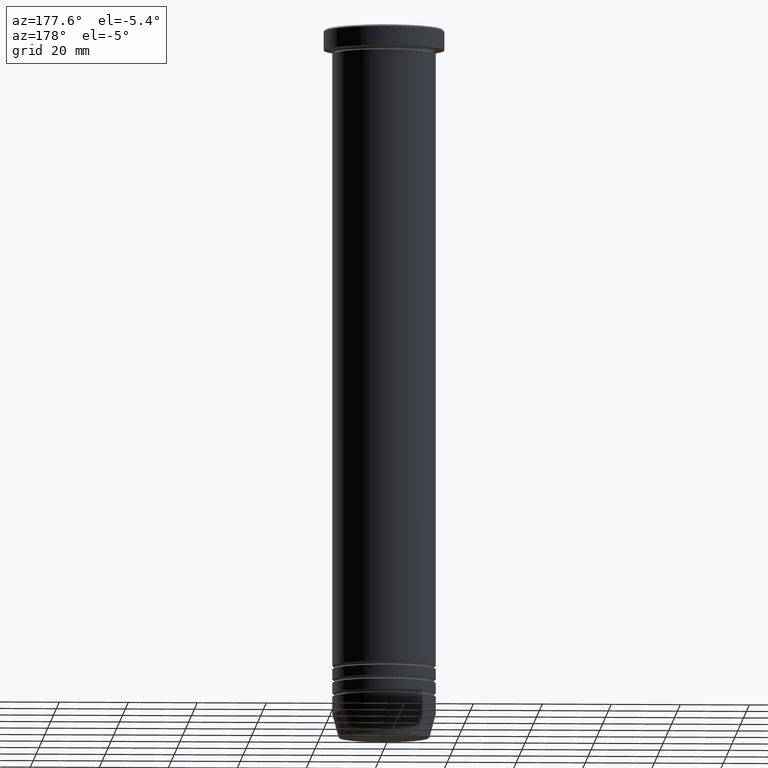
[diagram: clean part render]
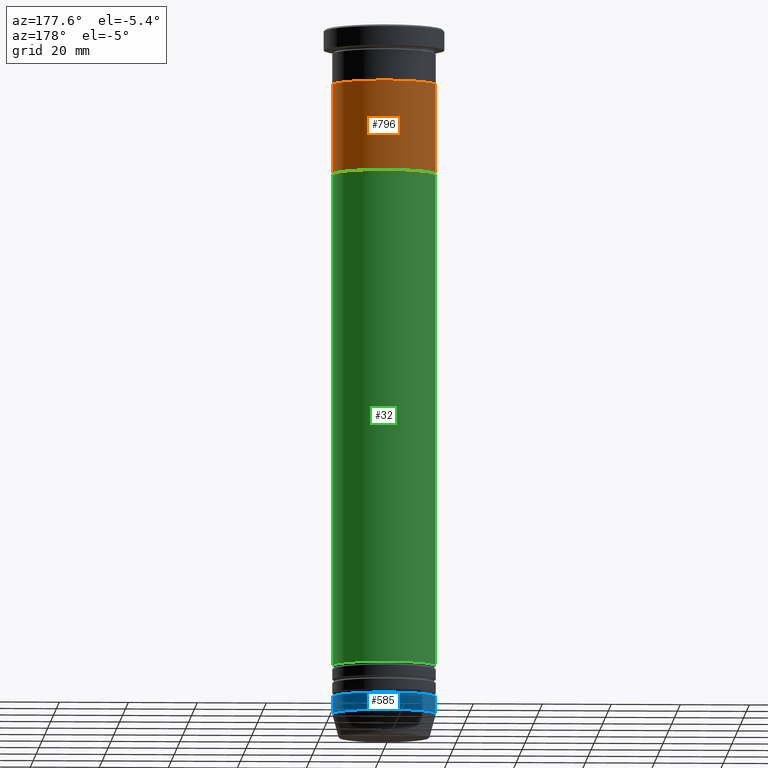
[diagram: same view with three faces highlighted in distinct colors, each labeled with its STEP entity id]
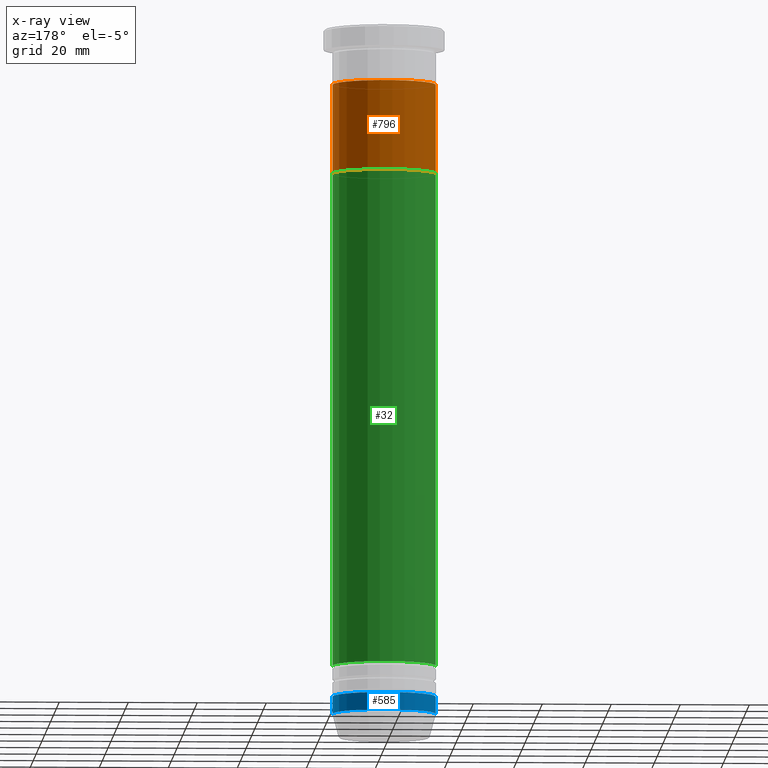
[diagram: x-ray of the same camera — body ghosted, the three highlighted faces saturated]
A machine part, auxiliary view with three faces highlighted in distinct colors.
The next image is the same camera in x-ray (body ghosted, the three faces saturated) — at least one of them is partly hidden behind the body in this view.
Their STEP definitions:

[orange] entity #796 — the highlighted cylindrical surface (partial cylindrical patch) has radius 15 mm, axis along (-0, -0, 1).
#12 = VERTEX_POINT ( 'NONE', #917 ) ;
#34 = DIRECTION ( 'NONE',  ( 0.000000000000000000, 0.000000000000000000, -1.000000000000000000 ) ) ;
#37 = LINE ( 'NONE', #228, #728 ) ;
#40 = DIRECTION ( 'NONE',  ( 0.000000000000000000, 0.000000000000000000, -1.000000000000000000 ) ) ;
#57 = ORIENTED_EDGE ( 'NONE', *, *, #162, .T. ) ;
#76 = FACE_OUTER_BOUND ( 'NONE', #1012, .T. ) ;
#123 = DIRECTION ( 'NONE',  ( -1.000000000000000000, 0.000000000000000000, 0.000000000000000000 ) ) ;
#143 = DIRECTION ( 'NONE',  ( -0.000000000000000000, -0.000000000000000000, 1.000000000000000000 ) ) ;
#162 = EDGE_CURVE ( 'NONE', #925, #685, #251, .T. ) ;
#219 = CARTESIAN_POINT ( 'NONE',  ( 0.000000000000000000, 0.000000000000000000, -41.99999999999999289 ) ) ;
#228 = CARTESIAN_POINT ( 'NONE',  ( 15.00000000000000000, 0.000000000000000000, -41.99999999999999289 ) ) ;
#251 = LINE ( 'NONE', #867, #475 ) ;
#396 = DIRECTION ( 'NONE',  ( -1.000000000000000000, 0.000000000000000000, 0.000000000000000000 ) ) ;
#400 = VERTEX_POINT ( 'NONE', #468 ) ;
#404 = CIRCLE ( 'NONE', #1038, 15.00000000000000000 ) ;
#432 = CYLINDRICAL_SURFACE ( 'NONE', #1063, 15.00000000000000000 ) ;
#468 = CARTESIAN_POINT ( 'NONE',  ( 15.00000000000000000, 0.000000000000000000, -41.99999999999999289 ) ) ;
#475 = VECTOR ( 'NONE', #598, 1000.000000000000000 ) ;
#496 = CARTESIAN_POINT ( 'NONE',  ( 0.000000000000000000, 0.000000000000000000, -16.00000000000000000 ) ) ;
#524 = CARTESIAN_POINT ( 'NONE',  ( -15.00000000000000000, 1.836970198721029194E-15, -41.99999999999999289 ) ) ;
#557 = CIRCLE ( 'NONE', #1004, 15.00000000000000000 ) ;
#598 = DIRECTION ( 'NONE',  ( -0.000000000000000000, -0.000000000000000000, 1.000000000000000000 ) ) ;
#612 = ORIENTED_EDGE ( 'NONE', *, *, #621, .F. ) ;
#621 = EDGE_CURVE ( 'NONE', #925, #400, #557, .T. ) ;
#648 = EDGE_CURVE ( 'NONE', #685, #12, #404, .T. ) ;
#685 = VERTEX_POINT ( 'NONE', #821 ) ;
#728 = VECTOR ( 'NONE', #143, 1000.000000000000000 ) ;
#780 = CARTESIAN_POINT ( 'NONE',  ( 0.000000000000000000, 0.000000000000000000, -41.99999999999999289 ) ) ;
#787 = DIRECTION ( 'NONE',  ( -0.000000000000000000, -0.000000000000000000, 1.000000000000000000 ) ) ;
#796 = ADVANCED_FACE ( 'NONE', ( #76 ), #432, .T. ) ;
#807 = ORIENTED_EDGE ( 'NONE', *, *, #648, .T. ) ;
#821 = CARTESIAN_POINT ( 'NONE',  ( -15.00000000000000000, 1.836970198721029194E-15, -16.00000000000000000 ) ) ;
#867 = CARTESIAN_POINT ( 'NONE',  ( -15.00000000000000000, 1.836970198721029194E-15, -41.99999999999999289 ) ) ;
#917 = CARTESIAN_POINT ( 'NONE',  ( 15.00000000000000000, 0.000000000000000000, -16.00000000000000000 ) ) ;
#925 = VERTEX_POINT ( 'NONE', #524 ) ;
#981 = ORIENTED_EDGE ( 'NONE', *, *, #1132, .F. ) ;
#1004 = AXIS2_PLACEMENT_3D ( 'NONE', #219, #34, #396 ) ;
#1012 = EDGE_LOOP ( 'NONE', ( #612, #57, #807, #981 ) ) ;
#1038 = AXIS2_PLACEMENT_3D ( 'NONE', #496, #40, #123 ) ;
#1063 = AXIS2_PLACEMENT_3D ( 'NONE', #780, #787, #1131 ) ;
#1131 = DIRECTION ( 'NONE',  ( 1.000000000000000000, 0.000000000000000000, 0.000000000000000000 ) ) ;
#1132 = EDGE_CURVE ( 'NONE', #400, #12, #37, .T. ) ;

[blue] entity #585 — the highlighted cylindrical surface (partial cylindrical patch) has radius 15 mm, axis along (-0, -0, 1).
#43 = CIRCLE ( 'NONE', #947, 14.99999999999999822 ) ;
#95 = DIRECTION ( 'NONE',  ( 1.000000000000000000, 0.000000000000000000, 0.000000000000000000 ) ) ;
#190 = CARTESIAN_POINT ( 'NONE',  ( 14.99999999999999822, 0.000000000000000000, -199.0000000000000000 ) ) ;
#199 = EDGE_CURVE ( 'NONE', #509, #944, #631, .T. ) ;
#232 = CYLINDRICAL_SURFACE ( 'NONE', #373, 14.99999999999999822 ) ;
#265 = DIRECTION ( 'NONE',  ( -0.000000000000000000, -0.000000000000000000, 1.000000000000000000 ) ) ;
#286 = CARTESIAN_POINT ( 'NONE',  ( 14.99999999999999822, 0.000000000000000000, 0.000000000000000000 ) ) ;
#288 = DIRECTION ( 'NONE',  ( 1.000000000000000000, 0.000000000000000000, 0.000000000000000000 ) ) ;
#296 = AXIS2_PLACEMENT_3D ( 'NONE', #707, #543, #95 ) ;
#339 = CARTESIAN_POINT ( 'NONE',  ( 14.99999999999999822, 0.000000000000000000, -194.0000000000000000 ) ) ;
#354 = VECTOR ( 'NONE', #1040, 1000.000000000000000 ) ;
#358 = DIRECTION ( 'NONE',  ( -0.000000000000000000, -0.000000000000000000, 1.000000000000000000 ) ) ;
#373 = AXIS2_PLACEMENT_3D ( 'NONE', #905, #673, #484 ) ;
#378 = CARTESIAN_POINT ( 'NONE',  ( -14.99999999999999822, 1.836970198721029589E-15, -199.0000000000000000 ) ) ;
#401 = FACE_OUTER_BOUND ( 'NONE', #825, .T. ) ;
#405 = VERTEX_POINT ( 'NONE', #378 ) ;
#484 = DIRECTION ( 'NONE',  ( 1.000000000000000000, 0.000000000000000000, 0.000000000000000000 ) ) ;
#509 = VERTEX_POINT ( 'NONE', #190 ) ;
#543 = DIRECTION ( 'NONE',  ( -0.000000000000000000, -0.000000000000000000, 1.000000000000000000 ) ) ;
#565 = EDGE_CURVE ( 'NONE', #509, #405, #750, .T. ) ;
#571 = ORIENTED_EDGE ( 'NONE', *, *, #565, .T. ) ;
#585 = ADVANCED_FACE ( 'NONE', ( #401 ), #232, .T. ) ;
#592 = CARTESIAN_POINT ( 'NONE',  ( -14.99999999999999822, 1.836970198721029589E-15, -194.0000000000000000 ) ) ;
#628 = ORIENTED_EDGE ( 'NONE', *, *, #811, .F. ) ;
#631 = LINE ( 'NONE', #286, #1078 ) ;
#673 = DIRECTION ( 'NONE',  ( -0.000000000000000000, -0.000000000000000000, 1.000000000000000000 ) ) ;
#696 = CARTESIAN_POINT ( 'NONE',  ( -14.99999999999999822, 1.836970198721029589E-15, 0.000000000000000000 ) ) ;
#707 = CARTESIAN_POINT ( 'NONE',  ( 0.000000000000000000, 0.000000000000000000, -199.0000000000000000 ) ) ;
#750 = CIRCLE ( 'NONE', #296, 14.99999999999999822 ) ;
#811 = EDGE_CURVE ( 'NONE', #944, #945, #43, .T. ) ;
#825 = EDGE_LOOP ( 'NONE', ( #571, #1005, #628, #1000 ) ) ;
#905 = CARTESIAN_POINT ( 'NONE',  ( 0.000000000000000000, 0.000000000000000000, 0.000000000000000000 ) ) ;
#944 = VERTEX_POINT ( 'NONE', #339 ) ;
#945 = VERTEX_POINT ( 'NONE', #592 ) ;
#947 = AXIS2_PLACEMENT_3D ( 'NONE', #1141, #358, #288 ) ;
#1000 = ORIENTED_EDGE ( 'NONE', *, *, #199, .F. ) ;
#1005 = ORIENTED_EDGE ( 'NONE', *, *, #1016, .T. ) ;
#1016 = EDGE_CURVE ( 'NONE', #405, #945, #1130, .T. ) ;
#1040 = DIRECTION ( 'NONE',  ( -0.000000000000000000, -0.000000000000000000, 1.000000000000000000 ) ) ;
#1078 = VECTOR ( 'NONE', #265, 1000.000000000000000 ) ;
#1130 = LINE ( 'NONE', #696, #354 ) ;
#1141 = CARTESIAN_POINT ( 'NONE',  ( 0.000000000000000000, 0.000000000000000000, -194.0000000000000000 ) ) ;

[green] entity #32 — the highlighted cylindrical surface (partial cylindrical patch) has radius 15 mm, axis along (-0, -0, 1).
#3 = DIRECTION ( 'NONE',  ( 1.000000000000000000, 0.000000000000000000, 0.000000000000000000 ) ) ;
#6 = AXIS2_PLACEMENT_3D ( 'NONE', #546, #709, #3 ) ;
#11 = VECTOR ( 'NONE', #778, 1000.000000000000000 ) ;
#32 = ADVANCED_FACE ( 'NONE', ( #357 ), #534, .T. ) ;
#74 = LINE ( 'NONE', #689, #11 ) ;
#80 = DIRECTION ( 'NONE',  ( 1.000000000000000000, 0.000000000000000000, 0.000000000000000000 ) ) ;
#153 = VECTOR ( 'NONE', #757, 1000.000000000000000 ) ;
#169 = CIRCLE ( 'NONE', #802, 15.00000000000000000 ) ;
#187 = VERTEX_POINT ( 'NONE', #688 ) ;
#200 = DIRECTION ( 'NONE',  ( -0.000000000000000000, -0.000000000000000000, 1.000000000000000000 ) ) ;
#241 = CARTESIAN_POINT ( 'NONE',  ( 0.000000000000000000, 0.000000000000000000, -185.0000000000000284 ) ) ;
#263 = ORIENTED_EDGE ( 'NONE', *, *, #974, .F. ) ;
#338 = DIRECTION ( 'NONE',  ( -0.000000000000000000, -0.000000000000000000, 1.000000000000000000 ) ) ;
#357 = FACE_OUTER_BOUND ( 'NONE', #1049, .T. ) ;
#391 = VERTEX_POINT ( 'NONE', #819 ) ;
#425 = DIRECTION ( 'NONE',  ( 1.000000000000000000, 0.000000000000000000, 0.000000000000000000 ) ) ;
#435 = CARTESIAN_POINT ( 'NONE',  ( 14.99999999999999112, 0.000000000000000000, -185.0000000000000284 ) ) ;
#439 = EDGE_CURVE ( 'NONE', #1135, #391, #506, .T. ) ;
#462 = VERTEX_POINT ( 'NONE', #435 ) ;
#506 = LINE ( 'NONE', #847, #153 ) ;
#534 = CYLINDRICAL_SURFACE ( 'NONE', #6, 14.99999999999999645 ) ;
#546 = CARTESIAN_POINT ( 'NONE',  ( 0.000000000000000000, 0.000000000000000000, 0.000000000000000000 ) ) ;
#670 = CARTESIAN_POINT ( 'NONE',  ( -14.99999999999999112, 1.836970198721028800E-15, -185.0000000000000284 ) ) ;
#672 = ORIENTED_EDGE ( 'NONE', *, *, #439, .T. ) ;
#681 = CIRCLE ( 'NONE', #824, 14.99999999999999112 ) ;
#688 = CARTESIAN_POINT ( 'NONE',  ( 15.00000000000000000, 0.000000000000000000, -41.99999999999999289 ) ) ;
#689 = CARTESIAN_POINT ( 'NONE',  ( 14.99999999999999645, 0.000000000000000000, 0.000000000000000000 ) ) ;
#709 = DIRECTION ( 'NONE',  ( -0.000000000000000000, -0.000000000000000000, 1.000000000000000000 ) ) ;
#714 = EDGE_CURVE ( 'NONE', #462, #1135, #681, .T. ) ;
#757 = DIRECTION ( 'NONE',  ( -0.000000000000000000, -0.000000000000000000, 1.000000000000000000 ) ) ;
#778 = DIRECTION ( 'NONE',  ( -0.000000000000000000, -0.000000000000000000, 1.000000000000000000 ) ) ;
#802 = AXIS2_PLACEMENT_3D ( 'NONE', #1059, #200, #80 ) ;
#819 = CARTESIAN_POINT ( 'NONE',  ( -15.00000000000000000, 1.836970198721029589E-15, -41.99999999999999289 ) ) ;
#824 = AXIS2_PLACEMENT_3D ( 'NONE', #241, #338, #425 ) ;
#847 = CARTESIAN_POINT ( 'NONE',  ( -14.99999999999999645, 1.836970198721029194E-15, 0.000000000000000000 ) ) ;
#858 = ORIENTED_EDGE ( 'NONE', *, *, #714, .T. ) ;
#974 = EDGE_CURVE ( 'NONE', #462, #187, #74, .T. ) ;
#1022 = ORIENTED_EDGE ( 'NONE', *, *, #1053, .F. ) ;
#1049 = EDGE_LOOP ( 'NONE', ( #858, #672, #1022, #263 ) ) ;
#1053 = EDGE_CURVE ( 'NONE', #187, #391, #169, .T. ) ;
#1059 = CARTESIAN_POINT ( 'NONE',  ( 0.000000000000000000, 0.000000000000000000, -41.99999999999999289 ) ) ;
#1135 = VERTEX_POINT ( 'NONE', #670 ) ;